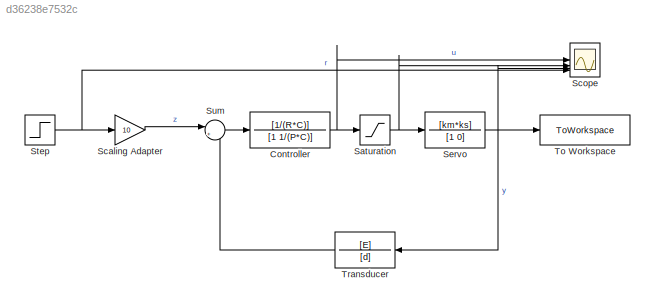
MODEL slx_d36238e7532c
KIND model
CONFIG AbsTol = auto
CONFIG EnableMultiTasking = off
CONFIG FixedStep = auto
CONFIG MaxStep = auto
CONFIG MinStep = auto
CONFIG RelTol = 1e-3
CONFIG SampleTimeConstraint = Unconstrained
CONFIG SolverName = VariableStepAuto
CONFIG StartTime = 0.0
CONFIG StopTime = 10.0
BLOCK [TransferFcn] Controller
  Denominator = [1 1/(P*C)]
  Numerator = [1/(R*C)]
  ParameterTunability = Unconstrained
BLOCK [Saturate] Saturation
  LowerLimit = -10
  UpperLimit = 100
BLOCK [Gain] Scaling Adapter
  Gain = 10
BLOCK [Scope] Scope
  Floating = off
  NumInputPorts = 4
  ScopeSpecificationString = Simulink.scopes.TimeScopeBlockCfg('CurrentConfiguration', extmgr.ConfigurationSet(extmgr.Configuration('Core','General UI',true),extmgr.Configuration('Core','Source UI',true),extmgr.Configuration('Sources','WiredSimulink',true),extmgr.Configuration('Visuals','Time Domain',true,'SerializedDisplays',{struct('MinYLimReal','0.30022','MaxYLimReal','0.62939','YLabelReal','','MinYLimMag','0.30022','MaxYL...<+1439ch>
BLOCK [TransferFcn] Servo
  Denominator = [1 0]
  Numerator = [km*ks]
BLOCK [Step] Step
  After = 0.5
  SampleTime = 0
  Time = 3
BLOCK [Sum] Sum
  Inputs = |+-
BLOCK [ToWorkspace] To Workspace
  FixptAsFi = on
  MaxDataPoints = inf
  SampleTime = -1
  SaveFormat = Timeseries
  VariableName = simout
BLOCK [TransferFcn] Transducer
  Denominator = [d]
  Numerator = [E]
NET Controller:1 -> Saturation:1, Scope:1
NET Saturation:1 -> Scope:2, Servo:1
LINE Scaling Adapter:1 -> Sum:1
NET Servo:1 -> Scope:3, To Workspace:1, Transducer:1
NET Step:1 -> Scaling Adapter:1, Scope:4
LINE Sum:1 -> Controller:1
LINE Transducer:1 -> Sum:2
note: NET lines group one-source signal fan-out (src -> all destinations, sorted); 1:1 wires keep LINE
